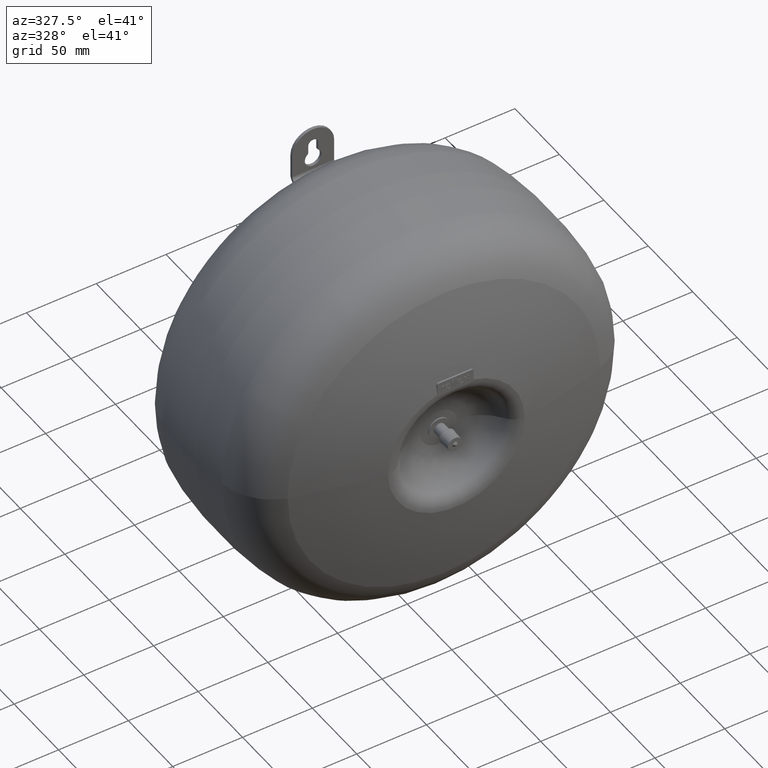
[diagram: clean part render]
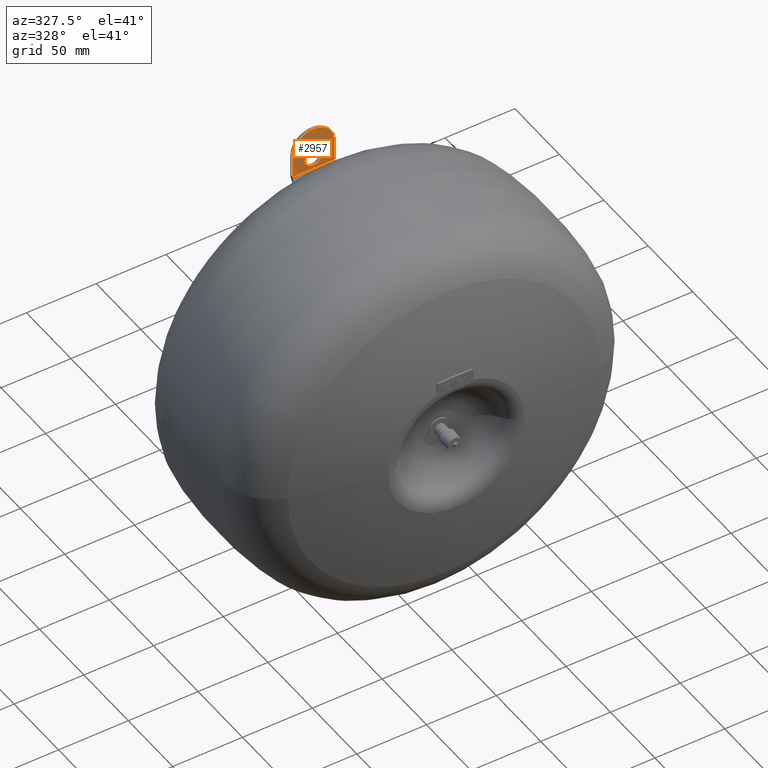
[diagram: same view with one face highlighted and labeled with its STEP entity id]
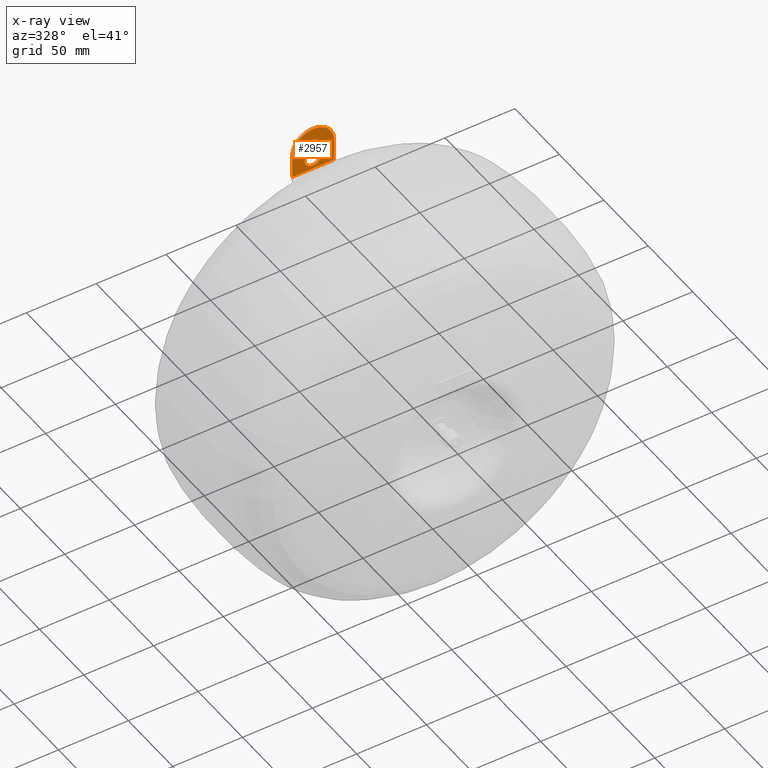
[diagram: x-ray of the same camera — body ghosted, the highlighted face saturated]
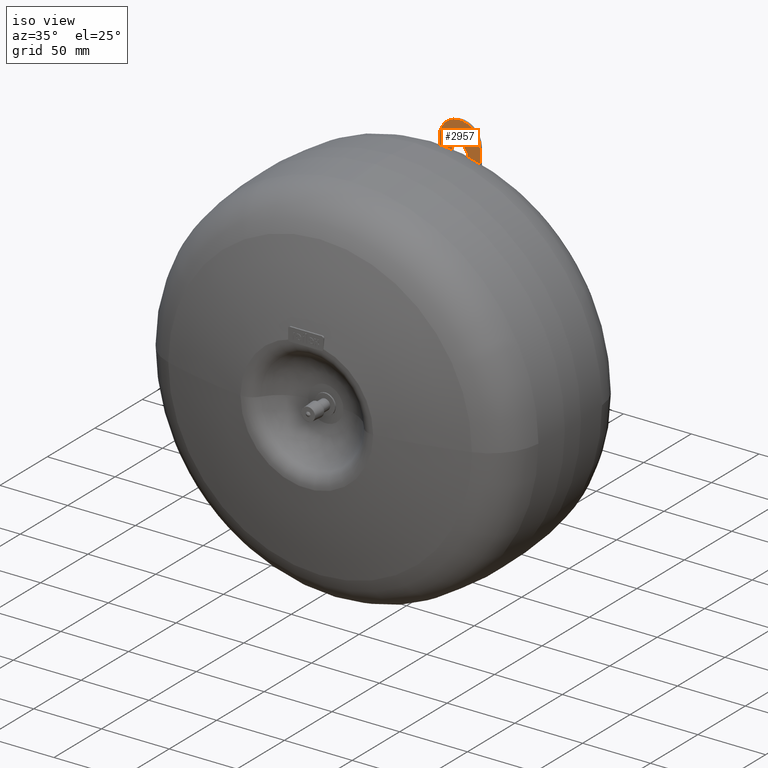
[diagram: same view with one face highlighted and labeled with its STEP entity id]
A machine part, auxiliary view. The second image highlights one B-rep face of the part: STEP entity #2957.
The next image is the same camera in x-ray: the body ghosted, the highlighted face saturated — about 0% of this face is hidden behind the body in this view.
A second angle (iso view) of the same face is appended — the face is thin or edge-on in the first view.
In plain terms, the highlighted planar face has unit normal (0, -1, 0).
Its self-contained STEP definition (entity closure, byte-faithful):
#2482=CARTESIAN_POINT('',(3.500000000000057,56.0,277.8803768095114));
#2483=VERTEX_POINT('',#2482);
#2484=CARTESIAN_POINT('',(-3.499999999999972,56.0,277.8803768095114));
#2485=VERTEX_POINT('',#2484);
#2486=CARTESIAN_POINT('',(2.842171E-014,56.0,273.00697903433343));
#2487=DIRECTION('',(-2.881935E-026,1.0,-3.188142E-016));
#2488=DIRECTION('',(9.039543E-011,3.188142E-016,1.0));
#2489=AXIS2_PLACEMENT_3D('',#2486,#2487,#2488);
#2490=ELLIPSE('',#2489,6.000000742119036,6.0);
#2491=EDGE_CURVE('',#2483,#2485,#2490,.T.);
#2524=CARTESIAN_POINT('',(-3.499999999999972,56.000000000000007,284.00698039488498));
#2525=VERTEX_POINT('',#2524);
#2526=CARTESIAN_POINT('',(-3.499999999999972,56.000000000000007,277.8803768095114));
#2527=DIRECTION('',(0.0,0.0,1.0));
#2528=VECTOR('',#2527,6.126603585373573);
#2529=LINE('',#2526,#2528);
#2530=EDGE_CURVE('',#2485,#2525,#2529,.T.);
#2555=CARTESIAN_POINT('',(3.500000000000028,56.0,284.00698039488498));
#2556=VERTEX_POINT('',#2555);
#2557=CARTESIAN_POINT('',(2.842171E-014,56.0,284.00698039488498));
#2558=DIRECTION('',(0.0,1.0,0.0));
#2559=DIRECTION('',(0.0,0.0,-1.0));
#2560=AXIS2_PLACEMENT_3D('',#2557,#2558,#2559);
#2561=ELLIPSE('',#2560,3.500000432902771,3.500000000000001);
#2562=EDGE_CURVE('',#2525,#2556,#2561,.T.);
#2588=CARTESIAN_POINT('',(3.500000000000033,56.000000000000007,284.00698039488498));
#2589=DIRECTION('',(0.0,0.0,-1.0));
#2590=VECTOR('',#2589,6.126603585373573);
#2591=LINE('',#2588,#2590);
#2592=EDGE_CURVE('',#2556,#2483,#2591,.T.);
#2737=CARTESIAN_POINT('',(-14.999999999999972,56.000000000000007,281.00698002382546));
#2738=VERTEX_POINT('',#2737);
#2745=CARTESIAN_POINT('',(15.000000000000028,56.0,281.00698002382546));
#2746=VERTEX_POINT('',#2745);
#2747=CARTESIAN_POINT('',(2.842171E-014,56.0,281.00698002382546));
#2748=DIRECTION('',(-1.271905E-025,1.0,-3.188228E-016));
#2749=DIRECTION('',(3.989381E-010,3.188228E-016,1.0));
#2750=AXIS2_PLACEMENT_3D('',#2747,#2748,#2749);
#2751=ELLIPSE('',#2750,15.000001855297588,15.0);
#2752=EDGE_CURVE('',#2738,#2746,#2751,.T.);
#2921=CARTESIAN_POINT('',(15.000000000000028,56.000000000000007,296.00698187912303));
#2922=DIRECTION('',(0.0,-1.0,0.0));
#2923=DIRECTION('',(1.0,0.0,0.0));
#2924=AXIS2_PLACEMENT_3D('',#2921,#2922,#2923);
#2925=PLANE('',#2924);
#2926=ORIENTED_EDGE('',*,*,#2752,.F.);
#2927=CARTESIAN_POINT('',(-14.999999999999972,56.0,264.66662374370634));
#2928=VERTEX_POINT('',#2927);
#2929=CARTESIAN_POINT('',(-14.99999999999997,56.000000000000007,281.00698002382546));
#2930=DIRECTION('',(0.0,0.0,-1.0));
#2931=VECTOR('',#2930,16.340356280119124);
#2932=LINE('',#2929,#2931);
#2933=EDGE_CURVE('',#2738,#2928,#2932,.T.);
#2934=ORIENTED_EDGE('',*,*,#2933,.T.);
#2935=CARTESIAN_POINT('',(15.000000000000028,55.999999999999993,264.66662374370634));
#2936=VERTEX_POINT('',#2935);
#2937=CARTESIAN_POINT('',(15.000000000000028,55.999999999999993,264.66662374370634));
#2938=DIRECTION('',(-1.0,0.0,0.0));
#2939=VECTOR('',#2938,30.0);
#2940=LINE('',#2937,#2939);
#2941=EDGE_CURVE('',#2936,#2928,#2940,.T.);
#2942=ORIENTED_EDGE('',*,*,#2941,.F.);
#2943=CARTESIAN_POINT('',(15.000000000000028,55.999999999999993,264.66662374370634));
#2944=DIRECTION('',(0.0,0.0,1.0));
#2945=VECTOR('',#2944,16.340356280119124);
#2946=LINE('',#2943,#2945);
#2947=EDGE_CURVE('',#2936,#2746,#2946,.T.);
#2948=ORIENTED_EDGE('',*,*,#2947,.T.);
#2949=EDGE_LOOP('',(#2926,#2934,#2942,#2948));
#2950=FACE_OUTER_BOUND('',#2949,.T.);
#2951=ORIENTED_EDGE('',*,*,#2562,.T.);
#2952=ORIENTED_EDGE('',*,*,#2592,.T.);
#2953=ORIENTED_EDGE('',*,*,#2491,.T.);
#2954=ORIENTED_EDGE('',*,*,#2530,.T.);
#2955=EDGE_LOOP('',(#2951,#2952,#2953,#2954));
#2956=FACE_BOUND('',#2955,.T.);
#2957=ADVANCED_FACE('',(#2950,#2956),#2925,.T.);